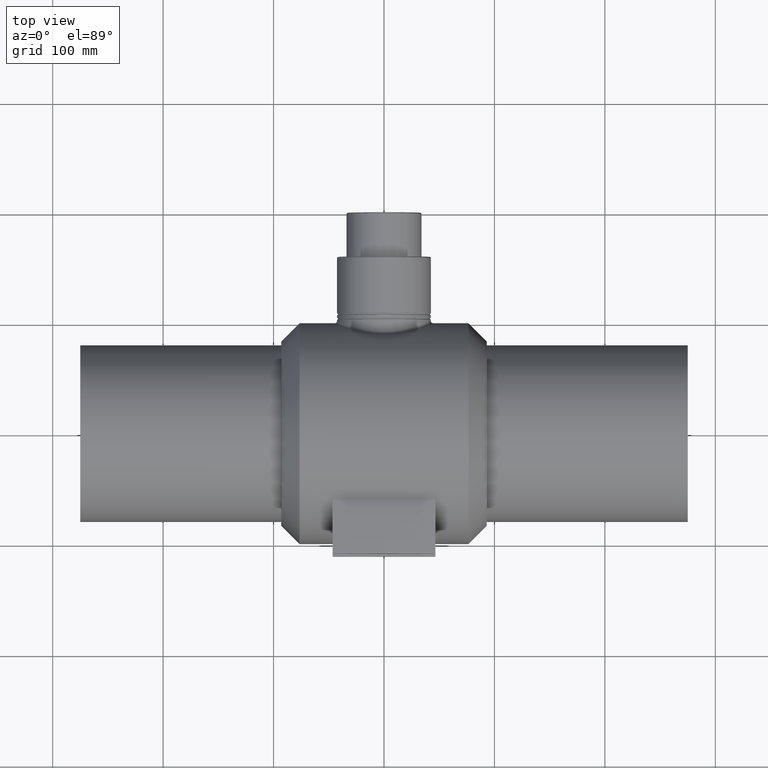
[diagram: clean part render]
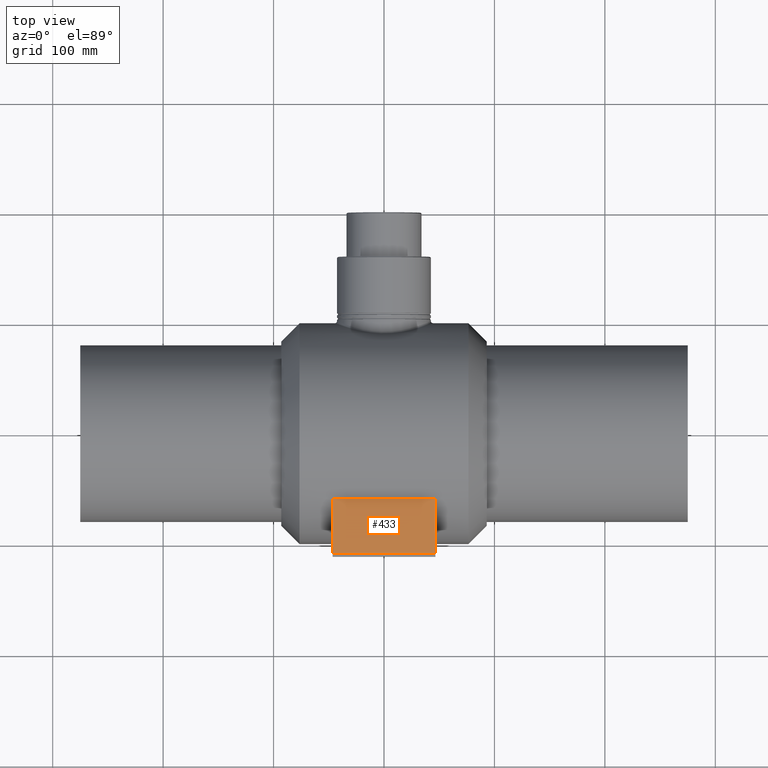
[diagram: same view with one face highlighted and labeled with its STEP entity id]
A machine part, top view. The second image highlights one B-rep face of the part: STEP entity #433.
In plain terms, the highlighted planar face has unit normal (0, 0, 1).
Its self-contained STEP definition (entity closure, byte-faithful):
#28=PLANE('',#483);
#38=LINE('',#835,#58);
#50=LINE('',#891,#70);
#56=LINE('',#902,#76);
#57=LINE('',#904,#77);
#58=VECTOR('',#522,93.);
#70=VECTOR('',#586,50.);
#76=VECTOR('',#596,93.);
#77=VECTOR('',#599,50.);
#132=FACE_OUTER_BOUND('',#177,.T.);
#177=EDGE_LOOP('',(#382,#383,#384,#385));
#235=VERTEX_POINT('',#832);
#236=VERTEX_POINT('',#834);
#254=VERTEX_POINT('',#890);
#257=VERTEX_POINT('',#900);
#275=EDGE_CURVE('',#235,#236,#38,.T.);
#298=EDGE_CURVE('',#254,#235,#50,.T.);
#304=EDGE_CURVE('',#254,#257,#56,.T.);
#305=EDGE_CURVE('',#236,#257,#57,.T.);
#382=ORIENTED_EDGE('',*,*,#304,.T.);
#383=ORIENTED_EDGE('',*,*,#305,.F.);
#384=ORIENTED_EDGE('',*,*,#275,.F.);
#385=ORIENTED_EDGE('',*,*,#298,.F.);
#433=ADVANCED_FACE('',(#132),#28,.T.);
#483=AXIS2_PLACEMENT_3D('',#903,#597,#598);
#522=DIRECTION('',(1.,0.,0.));
#586=DIRECTION('',(0.,1.,0.));
#596=DIRECTION('',(1.,0.,0.));
#597=DIRECTION('center_axis',(0.,0.,1.));
#598=DIRECTION('ref_axis',(0.,-1.,0.));
#599=DIRECTION('',(0.,-1.,0.));
#832=CARTESIAN_POINT('',(-46.5,-60.,80.));
#834=CARTESIAN_POINT('',(46.5,-60.,80.));
#835=CARTESIAN_POINT('',(0.,-60.,80.));
#890=CARTESIAN_POINT('',(-46.5,-110.,80.));
#891=CARTESIAN_POINT('',(-46.5,-60.,80.));
#900=CARTESIAN_POINT('',(46.5,-110.,80.));
#902=CARTESIAN_POINT('',(0.,-110.,80.));
#903=CARTESIAN_POINT('Origin',(0.,-60.,80.));
#904=CARTESIAN_POINT('',(46.5,-60.,80.));